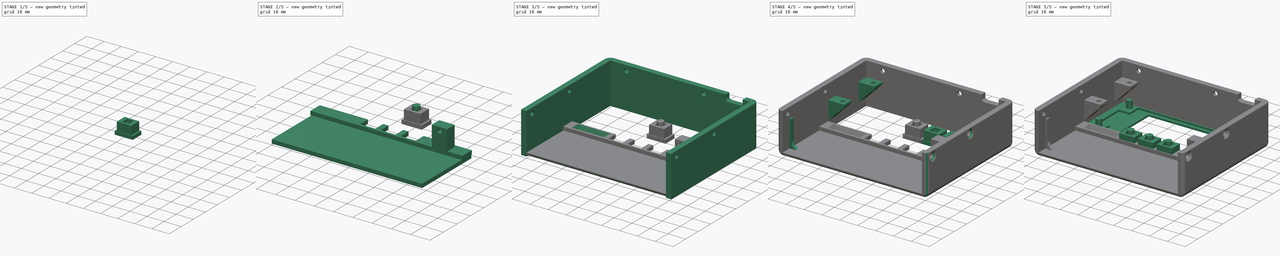
[diagram: build sequence overview — one tinted view per stage of 5, left to right]
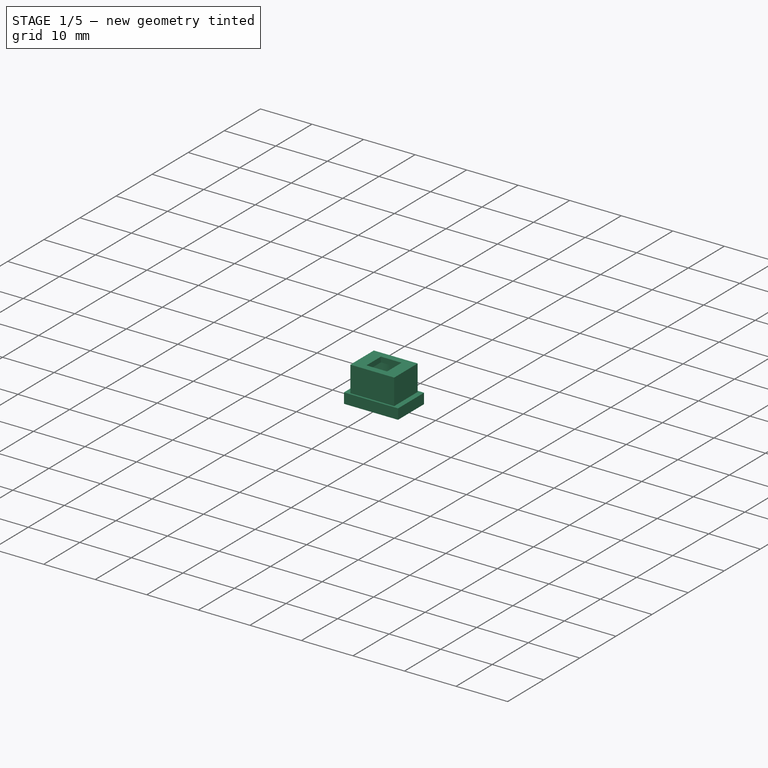
[diagram: stage 1 of 5 — iso view after this stage's code; geometry added in this stage tinted green]
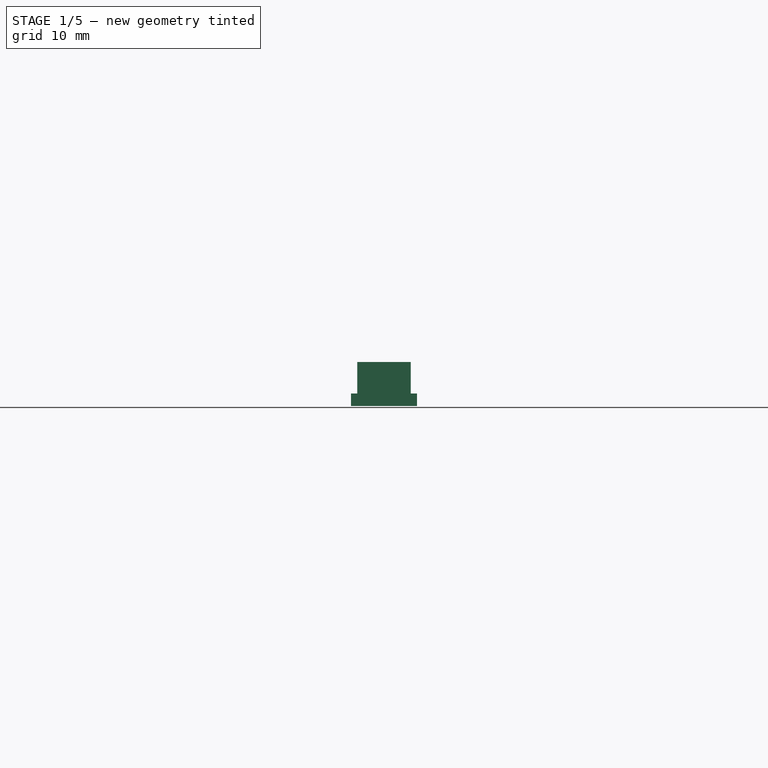
[diagram: stage 1 of 5 — front view after this stage's code; geometry added in this stage tinted green]
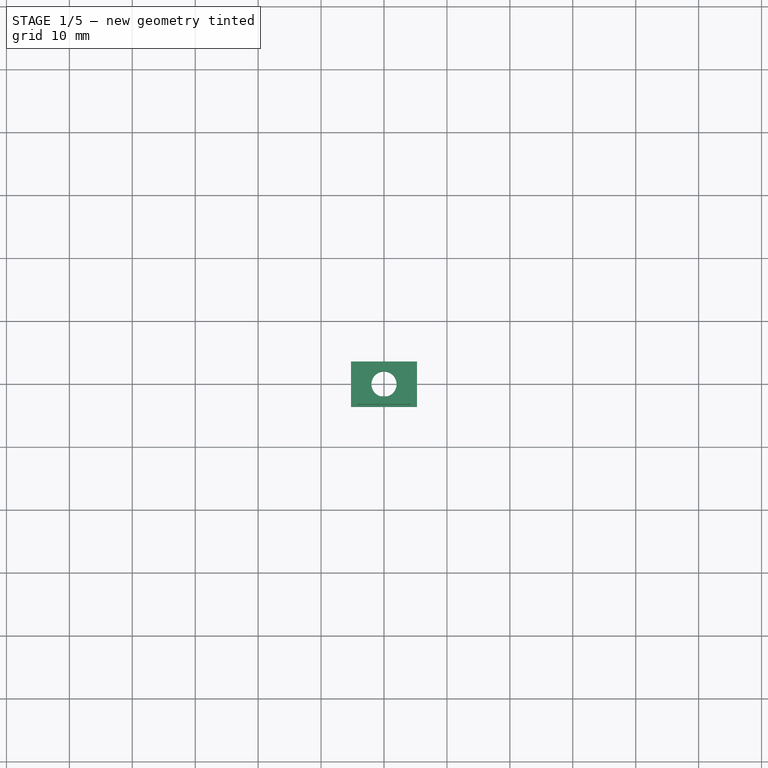
[diagram: stage 1 of 5 — top view after this stage's code; geometry added in this stage tinted green]
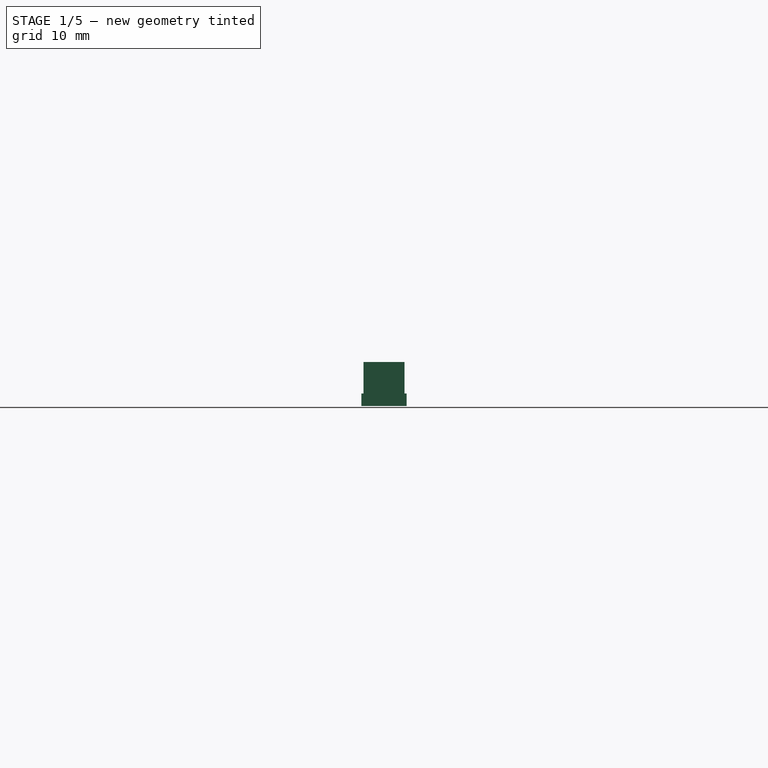
[diagram: stage 1 of 5 — right view after this stage's code; geometry added in this stage tinted green]
FCSTD DOCUMENT  (FreeCAD 0.21R33771 (Git))
Label: Main_body
License: All rights reserved
LicenseURL: http://en.wikipedia.org/wiki/All_rights_reserved
objects: Sketcher::SketchObject×23, PartDesign::Pad×13, PartDesign::Pocket×10, PartDesign::Fillet×6, PartDesign::Body×5, PartDesign::Chamfer×4, Part::FeaturePython×3, Part::Compound×2
note: 99 computed .brp shape members not serialized (recipe doc carries the construction recipe); baked Part::Feature solids carry a one-line shape summary decoded from their .brp

FEATURE [PartDesign::Body] Body  label="Screen"
  Group = -> [Sketch,Pad,Sketch001,Sketch002,Pocket,Sketch003,Pocket001,Pad001]
  Origin = -> Origin
  Tip = -> Pad001
FEATURE [Part::FeaturePython] LinearArray  # WARN: FeaturePython — macro-defined, semantics opaque (R4)
  Alignment = 0
  CellStart = A1
  Count = 3
  Dir = (1,0,0)
  DirIsDriven = true
  DistributionLaw = 0
  DrivenProperty = 1
  EndInclusive = true
  ExposePlacement = false
  GeneratorMode = 0
  MarkerShape = 1
  MarkerSize = 0
  NumElements = 3
  OrientMode = 1
  Point = (0,0,0)
  PointIsDriven = true
  Reverse = false
  SpanEnd = 21
  SpanStart = 0
  Step = 10.5
  Type = lattice2LinearArray.LinearArray
  VSGVersion = 1
  Values = 0.0 | 10.5 | 21.0
  ValuesSource = 2
  isLattice = 1
FEATURE [Sketcher::SketchObject] Sketch007
  FullyConstrained = true
  MapMode = 5
  Support = -> [XY_Plane001]
  sketch-geometry (4):
    g0: LineSegment StartX=-5.25 StartY=3.6 StartZ=0 EndX=5.25 EndY=3.6 EndZ=0
    g1: LineSegment StartX=5.25 StartY=3.6 StartZ=0 EndX=5.25 EndY=-3.6 EndZ=0
    g2: LineSegment StartX=5.25 StartY=-3.6 StartZ=0 EndX=-5.25 EndY=-3.6 EndZ=0
    g3: LineSegment StartX=-5.25 StartY=-3.6 StartZ=0 EndX=-5.25 EndY=3.6 EndZ=0
  constraints (11):
    c: Coincident(g0,g1)
    c: Coincident(g1,g2)
    c: Coincident(g2,g3)
    c: Coincident(g3,g0)
    c: Horizontal(g0)
    c: Horizontal(g2)
    c: Vertical(g1)
    c: Vertical(g3)
    c: Symmetric(g0,g1,g-1)
    c: DistanceY(g1,g1) = 7.2
    c: DistanceX(g0,g0) = 10.5
FEATURE [PartDesign::Pad] Pad005
  AlongSketchNormal = false
  Direction = (0,0,1)
  Length = 2
  Length2 = 10
  Profile = -> Sketch007
  ReferenceAxis = -> Sketch007 [N_Axis]
  Type = 0
FEATURE [Sketcher::SketchObject] Sketch008
  FullyConstrained = true
  MapMode = 5
  Placement = pos=(0,0,2) rot=(0,0,1;0rad)
  Support = -> [Pad005]
  sketch-geometry (5):
    g0: LineSegment StartX=-4.25 StartY=3.25 StartZ=0 EndX=-4.25 EndY=-3.25 EndZ=0
    g1: LineSegment StartX=-4.25 StartY=-3.25 StartZ=0 EndX=4.25 EndY=-3.25 EndZ=0
    g2: LineSegment StartX=4.25 StartY=-3.25 StartZ=0 EndX=4.25 EndY=3.25 EndZ=0
    g3: LineSegment StartX=4.25 StartY=3.25 StartZ=0 EndX=-4.25 EndY=3.25 EndZ=0
    g4: GeomPoint X=0 Y=0 Z=0
  constraints (12):
    c: Coincident(g0,g1)
    c: Coincident(g1,g2)
    c: Coincident(g2,g3)
    c: Coincident(g3,g0)
    c: Horizontal(g1)
    c: Horizontal(g3)
    c: Vertical(g0)
    c: Vertical(g2)
    c: Symmetric(g1,g0,g4)
    c: Coincident(g4,g-1)
    c: DistanceX(g3,g3) = 8.5
    c: DistanceY(g2,g2) = 6.5
FEATURE [PartDesign::Pad] Pad006
  BaseFeature = -> Pad005
  Direction = (0,0,1)
  Length = 4
  Length2 = 10
  Profile = -> Sketch008
  ReferenceAxis = -> Sketch008 [N_Axis]
  Type = 0
FEATURE [Sketcher::SketchObject] Sketch009
  FullyConstrained = true
  MapMode = 5
  Placement = pos=(0,0,6) rot=(0,0,1;0rad)
  Support = -> [Pad006]
  sketch-geometry (5):
    g0: GeomPoint X=0 Y=0 Z=0
    g1: ArcOfCircle CenterX=-0.85 CenterY=0 CenterZ=0 NormalX=0 NormalY=0 NormalZ=1 AngleXU=0 Radius=2.75 StartAngle=1.5708 EndAngle=4.71239
    g2: ArcOfCircle CenterX=0.85 CenterY=0 CenterZ=0 NormalX=0 NormalY=0 NormalZ=1 AngleXU=0 Radius=2.75 StartAngle=4.71239 EndAngle=7.85398
    g3: LineSegment StartX=-0.85 StartY=-2.75 StartZ=0 EndX=0.85 EndY=-2.75 EndZ=0
    g4: LineSegment StartX=0.85 StartY=2.75 StartZ=0 EndX=-0.85 EndY=2.75 EndZ=0
  constraints (10):
    c: Coincident(g0,g-1)
    c: Tangent(g1,g3) = -1.5708
    c: Tangent(g3,g2) = -1.5708
    c: Tangent(g2,g4) = -1.5708
    c: Tangent(g4,g1) = -1.5708
    c: Equal(g1,g2)
    c: PointOnObject(g1,g-1)
    c: DistanceY(g2,g2) = 5.5
    c: Symmetric(g2,g1,g0)
    c: DistanceX(g1,g2) = 1.7
FEATURE [PartDesign::Pocket] Pocket002
  BaseFeature = -> Pad006
  Direction = (0,0,-1)
  Length = 0
  Length2 = 5
  Profile = -> Sketch009
  ReferenceAxis = -> Sketch009 [N_Axis]
  Type = 3
  UpToFace = -> Pad006 [Face5]
FEATURE [Sketcher::SketchObject] Sketch010
  ExternalGeometry = -> [Pocket002]
  FullyConstrained = true
  MapMode = 5
  Placement = pos=(0,0,6) rot=(0,0,1;0rad)
  Support = -> [Pocket002]
  sketch-geometry (5):
    g0: LineSegment StartX=4.25 StartY=-3.25 StartZ=0 EndX=4.25 EndY=3.25 EndZ=0
    g1: LineSegment StartX=4.25 StartY=3.25 StartZ=0 EndX=-4.25 EndY=3.25 EndZ=0
    g2: LineSegment StartX=-4.25 StartY=3.25 StartZ=0 EndX=-4.25 EndY=-3.25 EndZ=0
    g3: LineSegment StartX=-4.25 StartY=-3.25 StartZ=0 EndX=4.25 EndY=-3.25 EndZ=0
    g4: GeomPoint X=0 Y=0 Z=0
  constraints (11):
    c: Coincident(g0,g1)
    c: Coincident(g2,g3)
    c: Horizontal(g1)
    c: Horizontal(g3)
    c: Vertical(g0)
    c: Vertical(g2)
    c: Symmetric(g1,g0,g4)
    c: Coincident(g4,g-1)
    c: Coincident(g1,g2)
    c: Coincident(g3,g0)
    c: Coincident(g0,g-3)
FEATURE [PartDesign::Pad] Pad007
  BaseFeature = -> Pocket002
  Direction = (0,0,1)
  Length = 1
  Length2 = 10
  Profile = -> Sketch010
  ReferenceAxis = -> Sketch010 [N_Axis]
  Type = 0
FEATURE [Sketcher::SketchObject] Sketch011
  FullyConstrained = true
  MapMode = 5
  Placement = pos=(0,0,7) rot=(0,0,1;0rad)
  Support = -> [Pad007]
  sketch-geometry (5):
    g0: LineSegment StartX=2 StartY=2 StartZ=0 EndX=2 EndY=-2 EndZ=0
    g1: LineSegment StartX=2 StartY=-2 StartZ=0 EndX=-2 EndY=-2 EndZ=0
    g2: LineSegment StartX=-2 StartY=-2 StartZ=0 EndX=-2 EndY=2 EndZ=0
    g3: LineSegment StartX=-2 StartY=2 StartZ=0 EndX=2 EndY=2 EndZ=0
    g4: GeomPoint X=0 Y=0 Z=0
  constraints (12):
    c: Coincident(g0,g1)
    c: Coincident(g1,g2)
    c: Coincident(g2,g3)
    c: Coincident(g3,g0)
    c: Horizontal(g1)
    c: Horizontal(g3)
    c: Vertical(g0)
    c: Vertical(g2)
    c: Symmetric(g1,g0,g4)
    c: DistanceY(g2,g2) = 4
    c: Coincident(g4,g-1)
    c: Equal(g0,g3)
FEATURE [PartDesign::Pocket] Pocket003
  BaseFeature = -> Pad007
  Direction = (0,0,-1)
  Length = 1
  Length2 = 5
  Profile = -> Sketch011
  ReferenceAxis = -> Sketch011 [N_Axis]
  Type = 0
FEATURE [Sketcher::SketchObject] Sketch026
  FullyConstrained = true
  MapMode = 5
  Placement = pos=(0,0,0) rot=(1,0,0;3.14159rad)
  Support = -> [Pocket003]
  sketch-geometry (1):
    g0: Circle CenterX=0 CenterY=0 CenterZ=0 NormalX=0 NormalY=0 NormalZ=1 AngleXU=0 Radius=2
  constraints (2):
    c: Coincident(g0,g-1)
    c: Diameter(g0) = 4
FEATURE [PartDesign::Pocket] Pocket009
  BaseFeature = -> Pocket003
  Direction = (0,0,1)
  Length = 5
  Length2 = 5
  Profile = -> Sketch026
  ReferenceAxis = -> Sketch026 [N_Axis]
  Type = 0
FEATURE [PartDesign::Fillet] Fillet007
  Base = -> Pocket009 [Edge12]
  BaseFeature = -> Pocket009
  Radius = 0.7
  SupportTransform = false
  UseAllEdges = false
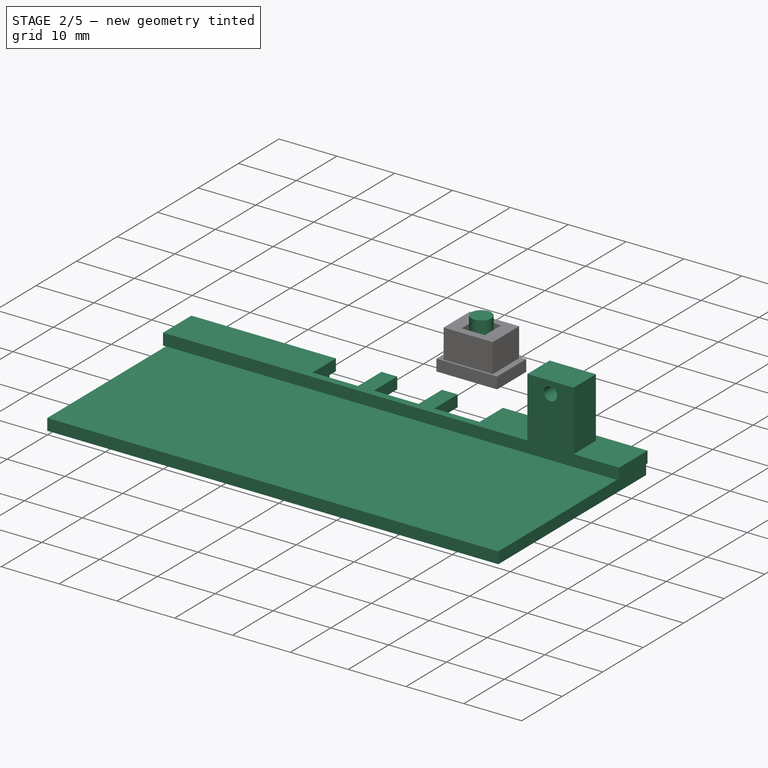
[diagram: stage 2 of 5 — iso view after this stage's code; geometry added in this stage tinted green]
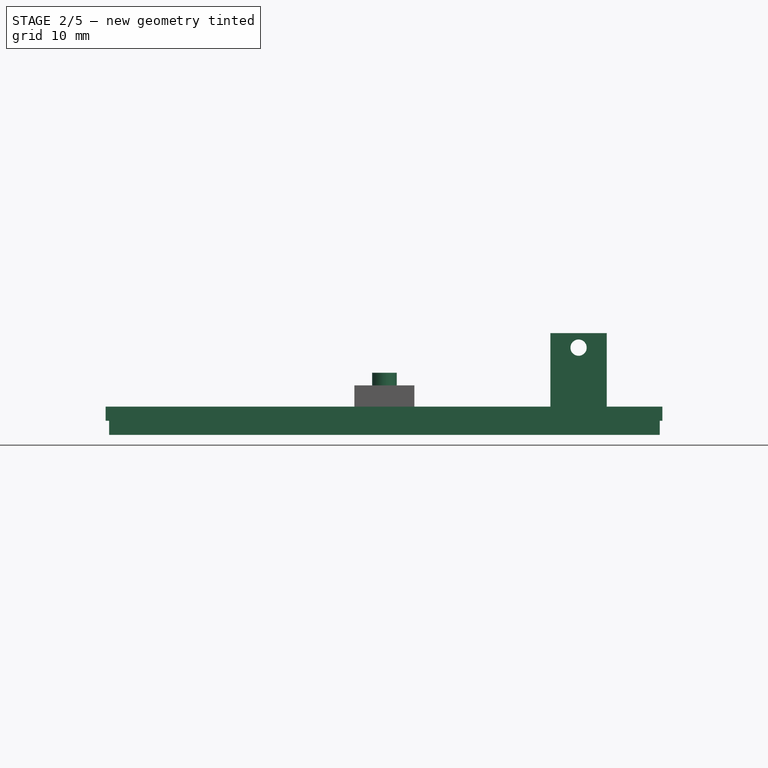
[diagram: stage 2 of 5 — front view after this stage's code; geometry added in this stage tinted green]
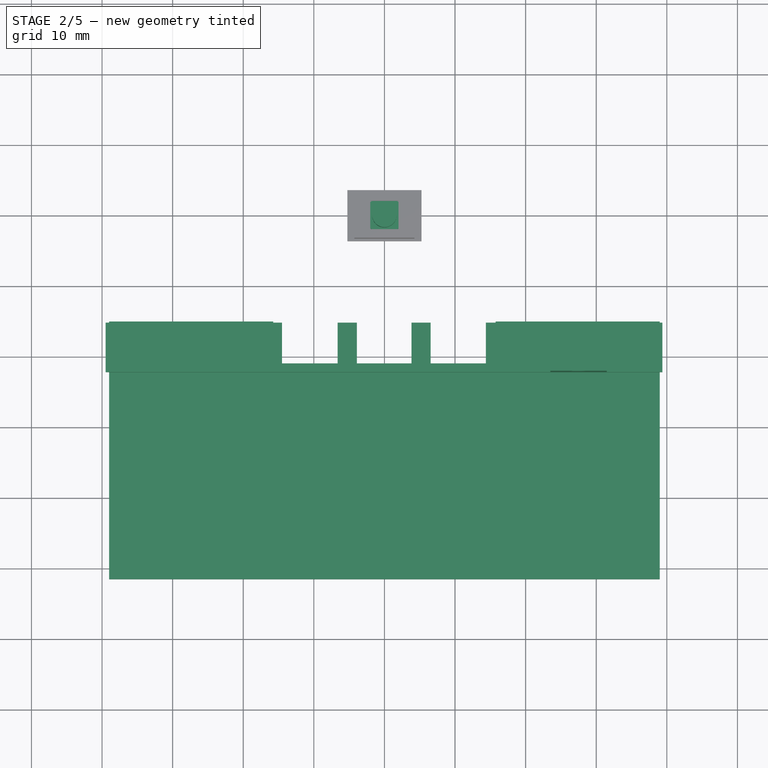
[diagram: stage 2 of 5 — top view after this stage's code; geometry added in this stage tinted green]
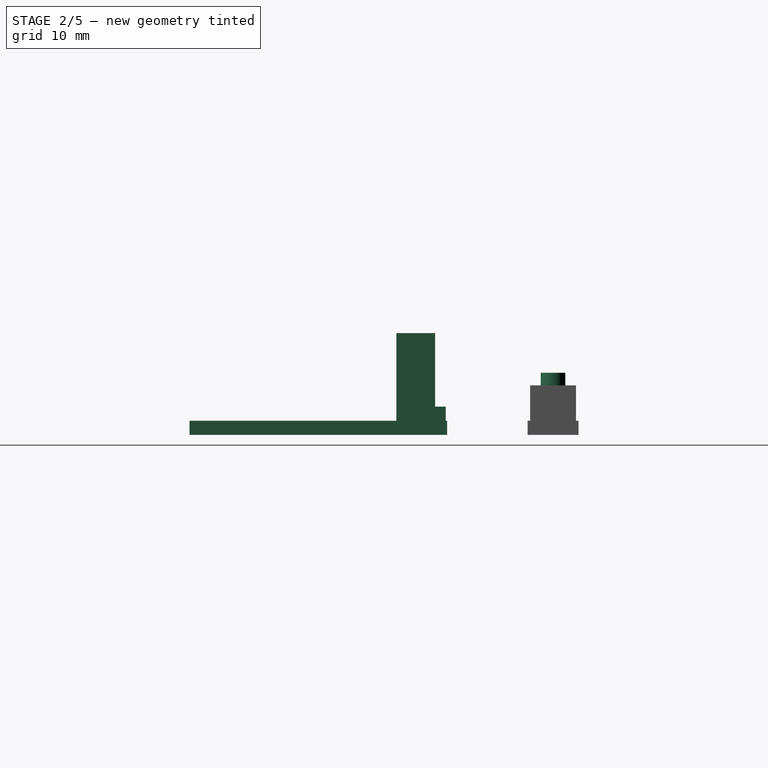
[diagram: stage 2 of 5 — right view after this stage's code; geometry added in this stage tinted green]
FEATURE [Sketcher::SketchObject] Sketch012
  AttachmentOffset = pos=(0,0,3.5) rot=(0,0,1;0rad)
  FullyConstrained = true
  MapMode = 5
  Placement = pos=(0,0,3.5) rot=(0,0,1;0rad)
  Support = -> [XY_Plane002]
  sketch-geometry (5):
    g0: GeomPoint X=0 Y=0 Z=0
    g1: ArcOfCircle CenterX=-0.75 CenterY=0 CenterZ=0 NormalX=0 NormalY=0 NormalZ=1 AngleXU=0 Radius=2.25 StartAngle=1.5708 EndAngle=4.71239
    g2: ArcOfCircle CenterX=0.75 CenterY=0 CenterZ=0 NormalX=0 NormalY=0 NormalZ=1 AngleXU=0 Radius=2.25 StartAngle=4.71239 EndAngle=7.85398
    g3: LineSegment StartX=-0.75 StartY=-2.25 StartZ=0 EndX=0.75 EndY=-2.25 EndZ=0
    g4: LineSegment StartX=0.75 StartY=2.25 StartZ=0 EndX=-0.75 EndY=2.25 EndZ=0
  constraints (10):
    c: Coincident(g0,g-1)
    c: Tangent(g1,g3) = -1.5708
    c: Tangent(g3,g2) = -1.5708
    c: Tangent(g2,g4) = -1.5708
    c: Tangent(g4,g1) = -1.5708
    c: Equal(g1,g2)
    c: PointOnObject(g1,g-1)
    c: DistanceX(g1,g2) = 1.5
    c: DistanceY(g2,g2) = 4.5
    c: Symmetric(g1,g2,g0)
FEATURE [PartDesign::Pad] Pad008
  Direction = (0,0,1)
  Length = 2
  Length2 = 10
  Profile = -> Sketch012
  ReferenceAxis = -> Sketch012 [N_Axis]
  Type = 0
FEATURE [Sketcher::SketchObject] Sketch013
  FullyConstrained = true
  MapMode = 5
  Support = -> [XY_Plane002]
  sketch-geometry (1):
    g0: Circle CenterX=0 CenterY=0 CenterZ=0 NormalX=0 NormalY=0 NormalZ=1 AngleXU=0 Radius=1.75
  constraints (2):
    c: Coincident(g0,g-1)
    c: Diameter(g0) = 3.5
FEATURE [PartDesign::Pad] Pad009
  BaseFeature = -> Pad008
  Direction = (0,0,1)
  Length = 8.8
  Length2 = 10
  Profile = -> Sketch013
  ReferenceAxis = -> Sketch013 [N_Axis]
  Type = 0
FEATURE [Sketcher::SketchObject] Sketch014
  FullyConstrained = true
  MapMode = 5
  Support = -> [XY_Plane003]
  sketch-geometry (8):
    g0: LineSegment StartX=-39 StartY=-15 StartZ=0 EndX=-15.75 EndY=-15 EndZ=0
    g1: LineSegment StartX=-15.75 StartY=-15 StartZ=0 EndX=-15.75 EndY=-22 EndZ=0
    g2: LineSegment StartX=-15.75 StartY=-22 StartZ=0 EndX=15.75 EndY=-22 EndZ=0
    g3: LineSegment StartX=15.75 StartY=-22 StartZ=0 EndX=15.75 EndY=-15 EndZ=0
    g4: LineSegment StartX=15.75 StartY=-15 StartZ=0 EndX=39 EndY=-15 EndZ=0
    g5: LineSegment StartX=39 StartY=-15 StartZ=0 EndX=39 EndY=-51.5 EndZ=0
    g6: LineSegment StartX=39 StartY=-51.5 StartZ=0 EndX=-39 EndY=-51.5 EndZ=0
    g7: LineSegment StartX=-39 StartY=-51.5 StartZ=0 EndX=-39 EndY=-15 EndZ=0
  constraints (23):
    c: Horizontal(g0)
    c: Coincident(g1,g0)
    c: Vertical(g1)
    c: Coincident(g2,g1)
    c: Horizontal(g2)
    c: Coincident(g3,g2)
    c: Vertical(g3)
    c: Coincident(g4,g3)
    c: Horizontal(g4)
    c: Coincident(g5,g4)
    c: Vertical(g5)
    c: Coincident(g6,g5)
    c: Coincident(g7,g6)
    c: Coincident(g7,g0)
    c: Vertical(g7)
    c: DistanceX(g0,g0) = 23.25
    c: DistanceY(g1,g1) = 7
    c: Horizontal(g3,g0)
    c: DistanceX(g6,g6) = 78
    c: DistanceY(g5,g5) = 36.5
    c: DistanceX(g2,g2) = 31.5
    c: Symmetric(g6,g5,g-2)
    c: DistanceY(g4,g-1) = 15
FEATURE [PartDesign::Pad] Pad010
  Direction = (0,0,1)
  Length = 2
  Length2 = 10
  Profile = -> Sketch014
  ReferenceAxis = -> Sketch014 [N_Axis]
  Type = 0
FEATURE [Sketcher::SketchObject] Sketch020
  FullyConstrained = false
  MapMode = 5
  Placement = pos=(0,0,2) rot=(0,0,1;0rad)
  Support = -> [Pad010]
  sketch-geometry (16):
    g0: LineSegment StartX=-14.5 StartY=-15.2 StartZ=0 EndX=-39.5 EndY=-15.2 EndZ=0
    g1: LineSegment StartX=-39.5 StartY=-15.2 StartZ=0 EndX=-39.5 EndY=-22.2 EndZ=0
    g2: LineSegment StartX=-14.5 StartY=-20.9727 StartZ=0 EndX=-14.5 EndY=-15.2 EndZ=0
    g3: LineSegment StartX=39.3786 StartY=-15.2 StartZ=0 EndX=14.3786 EndY=-15.2 EndZ=0
    g4: LineSegment StartX=14.3786 StartY=-15.2 StartZ=0 EndX=14.3786 EndY=-20.9727 EndZ=0
    g5: LineSegment StartX=-39.5 StartY=-22.2 StartZ=0 EndX=39.3786 EndY=-22.2 EndZ=0
    g6: LineSegment StartX=39.3786 StartY=-22.2 StartZ=0 EndX=39.3786 EndY=-15.2 EndZ=0
    g7: LineSegment StartX=-14.5 StartY=-20.9727 StartZ=0 EndX=-6.62573 EndY=-20.9727 EndZ=0
    g8: LineSegment StartX=-6.62573 StartY=-20.9727 StartZ=0 EndX=-6.62573 EndY=-15.2 EndZ=0
    g9: LineSegment StartX=-6.62573 StartY=-15.2 StartZ=0 EndX=-3.90018 EndY=-15.2 EndZ=0
    g10: LineSegment StartX=-3.90018 StartY=-15.2 StartZ=0 EndX=-3.90018 EndY=-20.9727 EndZ=0
    g11: LineSegment StartX=-3.90018 StartY=-20.9727 StartZ=0 EndX=3.83944 EndY=-20.9727 EndZ=0
    g12: LineSegment StartX=3.83944 StartY=-20.9727 StartZ=0 EndX=3.83944 EndY=-15.2 EndZ=0
    g13: LineSegment StartX=3.83944 StartY=-15.2 StartZ=0 EndX=6.54744 EndY=-15.2 EndZ=0
    g14: LineSegment StartX=6.54744 StartY=-15.2 StartZ=0 EndX=6.54744 EndY=-20.9727 EndZ=0
    g15: LineSegment StartX=6.54744 StartY=-20.9727 StartZ=0 EndX=14.3786 EndY=-20.9727 EndZ=0
  constraints (42):
    c: Coincident(g0,g1)
    c: Coincident(g2,g0)
    c: Horizontal(g0)
    c: Vertical(g1)
    c: Vertical(g2)
    c: DistanceX(g0,g0) = 25
    c: Coincident(g3,g4)
    c: Coincident(g5,g6)
    c: Coincident(g6,g3)
    c: Horizontal(g3)
    c: Horizontal(g5)
    c: Vertical(g4)
    c: Vertical(g6)
    c: Equal(g0,g3) = 25
    c: DistanceY(g0,g-1) = 15.2
    c: DistanceX(g0,g-1) = 39.5
    c: Horizontal(g7)
    c: Coincident(g8,g7)
    c: Vertical(g8)
    c: Coincident(g9,g8)
    c: Horizontal(g9)
    c: Coincident(g10,g9)
    c: Vertical(g10)
    c: Coincident(g11,g10)
    c: Horizontal(g11)
    c: Coincident(g12,g11)
    c: Vertical(g12)
    c: Coincident(g13,g12)
    c: Horizontal(g13)
    c: Coincident(g14,g13)
    c: Vertical(g14)
    c: Coincident(g15,g14)
    c: Horizontal(g15)
    c: Coincident(g2,g7)
    c: Coincident(g4,g15)
    c: Horizontal(g7,g10)
    c: Horizontal(g10,g14)
    c: Coincident(g5,g1)
    c: DistanceY(g6,g6) = 7
    c: Horizontal(g3,g13)
    c: Horizontal(g12,g9)
    c: Horizontal(g8,g0)
FEATURE [PartDesign::Pad] Pad013
  BaseFeature = -> Pad010
  Direction = (0,0,1)
  Length = 2
  Length2 = 10
  Profile = -> Sketch020
  ReferenceAxis = -> Sketch020 [N_Axis]
  Type = 0
FEATURE [Sketcher::SketchObject] Sketch021
  FullyConstrained = true
  MapMode = 5
  Placement = pos=(0,-22.2,0) rot=(1,0,0;1.5708rad)
  Support = -> [Pad013]
  sketch-geometry (5):
    g0: LineSegment StartX=23.5 StartY=14.4 StartZ=0 EndX=31.5 EndY=14.4 EndZ=0
    g1: LineSegment StartX=31.5 StartY=14.4 StartZ=0 EndX=31.5 EndY=3.4 EndZ=0
    g2: LineSegment StartX=31.5 StartY=3.4 StartZ=0 EndX=23.5 EndY=3.4 EndZ=0
    g3: LineSegment StartX=23.5 StartY=3.4 StartZ=0 EndX=23.5 EndY=14.4 EndZ=0
    g4: Circle CenterX=27.5 CenterY=12.35 CenterZ=0 NormalX=0 NormalY=0 NormalZ=1 AngleXU=0 Radius=1.15
  constraints (15):
    c: Coincident(g0,g1)
    c: Coincident(g1,g2)
    c: Coincident(g2,g3)
    c: Coincident(g3,g0)
    c: Horizontal(g0)
    c: Horizontal(g2)
    c: Vertical(g1)
    c: Vertical(g3)
    c: DistanceX(g0,g0) = 8
    c: DistanceY(g1,g1) = 11
    c: DistanceX(g4,g0) = 4
    c: Diameter(g4) = 2.3
    c: DistanceY(g-1,g0) = 14.4
    c: DistanceX(g-1,g0) = 23.5
    c: DistanceY(g4,g0) = 2.05
FEATURE [PartDesign::Pad] Pad014
  BaseFeature = -> Pad013
  Direction = (0,-1,2e-16)
  Length = 5.5
  Length2 = 10
  Profile = -> Sketch021
  ReferenceAxis = -> Sketch021 [N_Axis]
  Reversed = true
  Type = 0
FEATURE [PartDesign::Body] Body003  label="Bottom"
  Group = -> [Sketch014,Pad010,Sketch020,Pad013,Sketch021,Pad014,Fillet003,Fillet006,Sketch025,Pocket008]
  Origin = -> Origin003
  Tip = -> Pocket008
FEATURE [PartDesign::Fillet] Fillet
  Base = -> Pad009 [Edge6]
  BaseFeature = -> Pad009
  Radius = 0.4
  SupportTransform = false
  UseAllEdges = false
FEATURE [PartDesign::Chamfer] Chamfer002
  Angle = 45
  Base = -> Fillet [Edge21]
  BaseFeature = -> Fillet
  ChamferType = 0
  FlipDirection = false
  Size = 1.24
  Size2 = 1
  SupportTransform = false
  UseAllEdges = false
FEATURE [PartDesign::Chamfer] Chamfer003
  Angle = 45
  Base = -> Fillet007 [Edge17]
  BaseFeature = -> Fillet007
  ChamferType = 0
  FlipDirection = false
  Size = 0.7
  Size2 = 1
  SupportTransform = false
  UseAllEdges = false
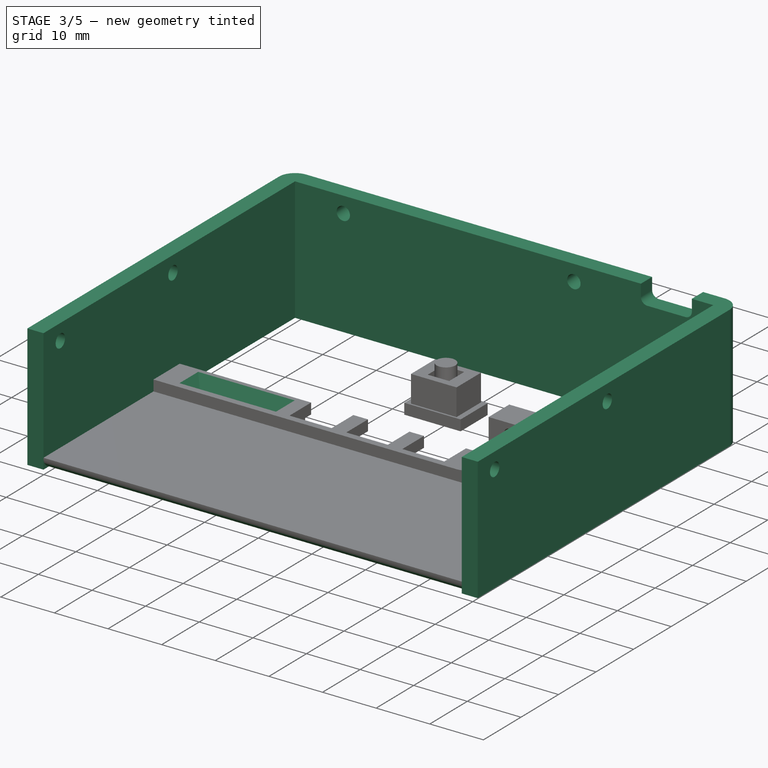
[diagram: stage 3 of 5 — iso view after this stage's code; geometry added in this stage tinted green]
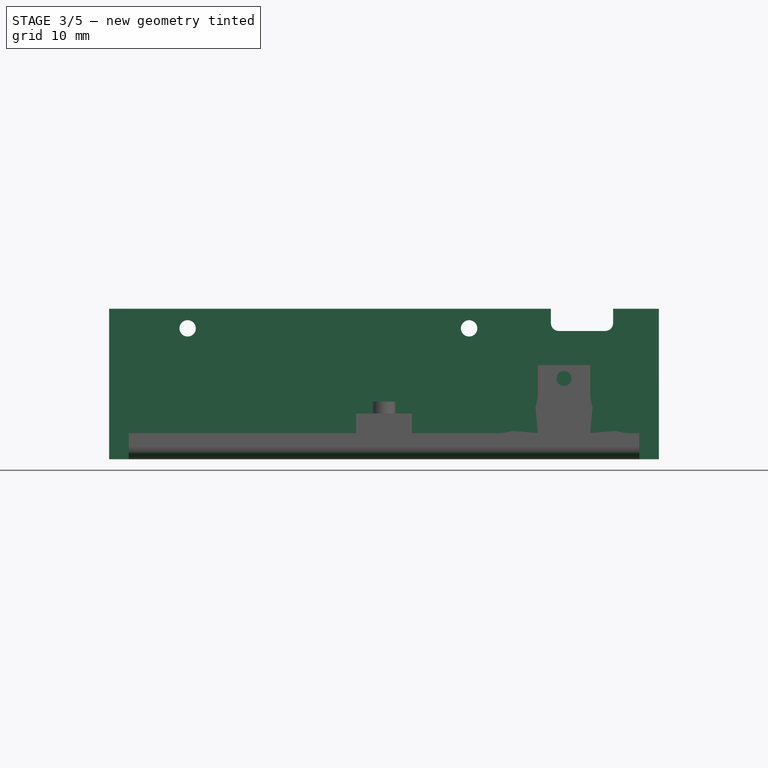
[diagram: stage 3 of 5 — front view after this stage's code; geometry added in this stage tinted green]
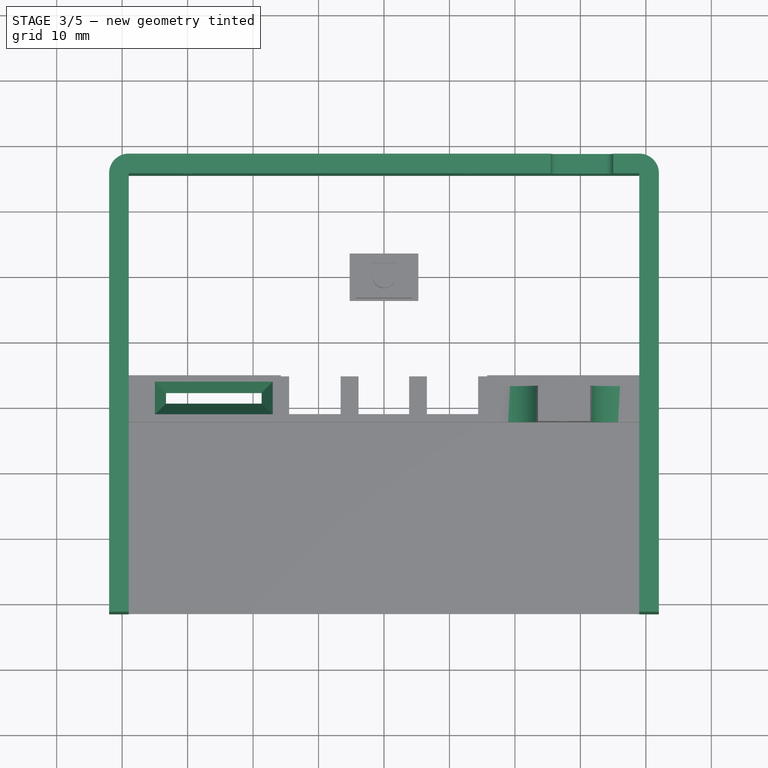
[diagram: stage 3 of 5 — top view after this stage's code; geometry added in this stage tinted green]
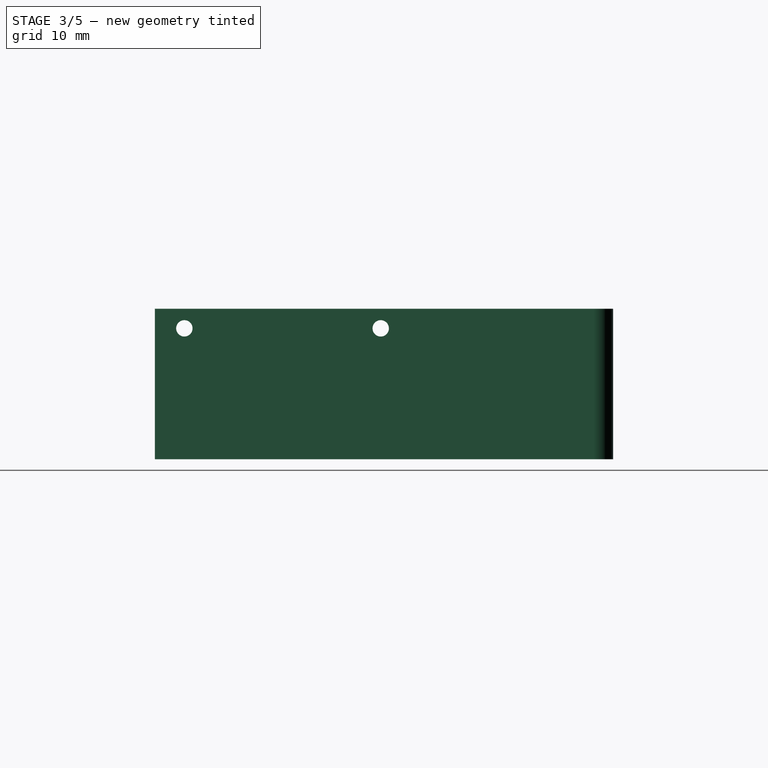
[diagram: stage 3 of 5 — right view after this stage's code; geometry added in this stage tinted green]
FEATURE [Sketcher::SketchObject] Sketch015
  FullyConstrained = true
  MapMode = 5
  Support = -> [XY_Plane004]
  sketch-geometry (11):
    g0: ArcOfCircle CenterX=-39 CenterY=15.5 CenterZ=0 NormalX=0 NormalY=0 NormalZ=1 AngleXU=0 Radius=3 StartAngle=1.5708 EndAngle=3.14159
    g1: LineSegment StartX=-39 StartY=18.5 StartZ=0 EndX=39 EndY=18.5 EndZ=0
    g2: ArcOfCircle CenterX=39 CenterY=15.5 CenterZ=0 NormalX=0 NormalY=0 NormalZ=1 AngleXU=0 Radius=3 StartAngle=1e-16 EndAngle=1.5708
    g3: LineSegment StartX=42 StartY=15.5 StartZ=0 EndX=42 EndY=-51.5 EndZ=0
    g4: LineSegment StartX=-42 StartY=-51.5 StartZ=0 EndX=-42 EndY=15.5 EndZ=0
    g5: GeomPoint X=-42 Y=18.5 Z=0
    g6: LineSegment StartX=42 StartY=-51.5 StartZ=0 EndX=39 EndY=-51.5 EndZ=0
    g7: LineSegment StartX=39 StartY=-51.5 StartZ=0 EndX=39 EndY=15.5 EndZ=0
    g8: LineSegment StartX=-39 StartY=15.5 StartZ=0 EndX=39 EndY=15.5 EndZ=0
    g9: LineSegment StartX=-39 StartY=15.5 StartZ=0 EndX=-39 EndY=-51.5 EndZ=0
    g10: LineSegment StartX=-39 StartY=-51.5 StartZ=0 EndX=-42 EndY=-51.5 EndZ=0
  constraints (27):
    c: Tangent(g0,g1) = 1.5708
    c: Tangent(g1,g2) = 1.5708
    c: Tangent(g2,g3) = 1.5708
    c: Tangent(g4,g0) = 1.5708
    c: Horizontal(g1)
    c: Vertical(g3)
    c: Vertical(g4)
    c: PointOnObject(g5,g1)
    c: PointOnObject(g5,g4)
    c: Radius(g0) = 3
    c: Coincident(g6,g3)
    c: Horizontal(g6)
    c: Coincident(g7,g6)
    c: Coincident(g7,g2)
    c: Vertical(g7)
    c: Coincident(g8,g0)
    c: Coincident(g8,g2)
    c: Coincident(g9,g0)
    c: Vertical(g9)
    c: Coincident(g10,g9)
    c: Coincident(g10,g4)
    c: Horizontal(g10)
    c: Horizontal(g9,g6)
    c: DistanceX(g8,g8) = 78
    c: Symmetric(g0,g2,g-2)
    c: DistanceY(g-1,g2) = 15.5
    c: DistanceY(g7,g7) = 67
FEATURE [PartDesign::Pad] Pad011
  Direction = (0,0,1)
  Length = 23
  Length2 = 10
  Profile = -> Sketch015
  ReferenceAxis = -> Sketch015 [N_Axis]
  Type = 0
FEATURE [Sketcher::SketchObject] Sketch017
  ExternalGeometry = -> [Pad011]
  FullyConstrained = true
  MapMode = 5
  Placement = pos=(0,18.5,0) rot=(0,0.707107,0.707107;3.14159rad)
  Support = -> [Pad011]
  sketch-geometry (7):
    g0: LineSegment StartX=-25.5 StartY=23 StartZ=0 EndX=-25.5 EndY=20.8 EndZ=0
    g1: ArcOfCircle CenterX=-26.7 CenterY=20.8 CenterZ=0 NormalX=0 NormalY=0 NormalZ=1 AngleXU=0 Radius=1.2 StartAngle=4.71239 EndAngle=6.28319
    g2: LineSegment StartX=-26.7 StartY=19.6 StartZ=0 EndX=-33.8 EndY=19.6 EndZ=0
    g3: ArcOfCircle CenterX=-33.8 CenterY=20.8 CenterZ=0 NormalX=0 NormalY=0 NormalZ=1 AngleXU=0 Radius=1.2 StartAngle=3.14159 EndAngle=4.71239
    g4: LineSegment StartX=-35 StartY=20.8 StartZ=0 EndX=-35 EndY=23 EndZ=0
    g5: GeomPoint X=-25.5 Y=19.6 Z=0
    g6: LineSegment StartX=-35 StartY=23 StartZ=0 EndX=-25.5 EndY=23 EndZ=0
  constraints (18):
    c: Tangent(g0,g1) = 1.5708
    c: Tangent(g1,g2) = 1.5708
    c: Tangent(g2,g3) = 1.5708
    c: Tangent(g3,g4) = 1.5708
    c: Horizontal(g2)
    c: Vertical(g0)
    c: Vertical(g4)
    c: Equal(g1,g3)
    c: PointOnObject(g5,g0)
    c: PointOnObject(g5,g2)
    c: DistanceY(g2,g-3) = 3.4
    c: Radius(g3) = 1.2
    c: Coincident(g6,g4)
    c: Coincident(g6,g0)
    c: Horizontal(g6)
    c: Horizontal(g-3,g4)
    c: DistanceX(g6,g6) = 9.5
    c: DistanceX(g-3,g4) = 7
FEATURE [PartDesign::Pocket] Pocket004
  BaseFeature = -> Pad011
  Direction = (0,-1,2e-16)
  Length = 5
  Length2 = 5
  Profile = -> Sketch017
  ReferenceAxis = -> Sketch017 [N_Axis]
  Type = 0
FEATURE [Sketcher::SketchObject] Sketch018
  ExternalGeometry = -> [Pocket004]
  FullyConstrained = true
  MapMode = 5
  Placement = pos=(-42,0,0) rot=(0.57735,-0.57735,-0.57735;2.0944rad)
  Support = -> [Pocket004]
  sketch-geometry (3):
    g0: GeomPoint X=17 Y=20 Z=0
    g1: Circle CenterX=17 CenterY=20 CenterZ=0 NormalX=0 NormalY=0 NormalZ=1 AngleXU=0 Radius=1.25
    g2: Circle CenterX=47 CenterY=20 CenterZ=0 NormalX=0 NormalY=0 NormalZ=1 AngleXU=0 Radius=1.25
  constraints (7):
    c: DistanceX(g-3,g0) = 35.5
    c: DistanceY(g0,g-3) = 3
    c: Coincident(g1,g0)
    c: Diameter(g1) = 2.5
    c: Equal(g1,g2)
    c: Horizontal(g2,g1)
    c: DistanceX(g1,g2) = 30
FEATURE [PartDesign::Pocket] Pocket005
  BaseFeature = -> Pocket004
  Direction = (1,0,0)
  Length = 5
  Length2 = 5
  Profile = -> Sketch018
  ReferenceAxis = -> Sketch018 [N_Axis]
  Type = 1
FEATURE [Sketcher::SketchObject] Sketch019
  ExternalGeometry = -> [Pocket005]
  FullyConstrained = true
  MapMode = 5
  Placement = pos=(0,18.5,0) rot=(0,0.707107,0.707107;3.14159rad)
  Support = -> [Pocket005]
  sketch-geometry (4):
    g0: GeomPoint X=-13 Y=20 Z=0
    g1: GeomPoint X=30 Y=20 Z=0
    g2: Circle CenterX=-13 CenterY=20 CenterZ=0 NormalX=0 NormalY=0 NormalZ=1 AngleXU=0 Radius=1.25
    g3: Circle CenterX=30 CenterY=20 CenterZ=0 NormalX=0 NormalY=0 NormalZ=1 AngleXU=0 Radius=1.25
  constraints (8):
    c: DistanceX(g0,g-3) = 55
    c: DistanceX(g1,g-3) = 12
    c: DistanceY(g1,g-3) = 3
    c: Horizontal(g0,g1)
    c: Coincident(g2,g0)
    c: Diameter(g2) = 2.5
    c: Coincident(g3,g1)
    c: Equal(g2,g3)
FEATURE [PartDesign::Pocket] Pocket006
  BaseFeature = -> Pocket005
  Direction = (0,-1,2e-16)
  Length = 5
  Length2 = 5
  Profile = -> Sketch019
  ReferenceAxis = -> Sketch019 [N_Axis]
  Type = 0
FEATURE [PartDesign::Fillet] Fillet003
  Base = -> Pad014 [Edge91,Edge89]
  BaseFeature = -> Pad014
  Radius = 6
  SupportTransform = false
  UseAllEdges = false
FEATURE [PartDesign::Fillet] Fillet006
  Base = -> Fillet003 [Edge94]
  BaseFeature = -> Fillet003
  Radius = 1.99
  SupportTransform = false
  UseAllEdges = false
FEATURE [PartDesign::Body] Body004  label="Wall"
  Group = -> [Sketch015,Pad011,Sketch017,Pocket004,Sketch018,Pocket005,Sketch019,Pocket006,Chamfer,Sketch022,Pad015,Fillet004,Fillet005,Sketch023,Pad016,Chamfer001,Sketch024,Pocket007]
  Origin = -> Origin004
  Tip = -> Pocket007
FEATURE [Sketcher::SketchObject] Sketch025
  FullyConstrained = false
  MapMode = 5
  Placement = pos=(0,0,4) rot=(0,0,1;0rad)
  Support = -> [Fillet006]
  sketch-geometry (6):
    g0: LineSegment StartX=-35 StartY=-16 StartZ=0 EndX=-17 EndY=-16 EndZ=0
    g1: LineSegment StartX=-17 StartY=-16 StartZ=0 EndX=-17 EndY=-21 EndZ=0
    g2: LineSegment StartX=-17 StartY=-21 StartZ=0 EndX=-35 EndY=-21 EndZ=0
    g3: LineSegment StartX=-35 StartY=-21 StartZ=0 EndX=-35 EndY=-16 EndZ=0
    g4: GeomPoint X=-10.5028 Y=-18.6319 Z=0
    g5: GeomPoint X=-22 Y=-18.5224 Z=0
  constraints (13):
    c: Coincident(g0,g1)
    c: Coincident(g1,g2)
    c: Coincident(g2,g3)
    c: Coincident(g3,g0)
    c: Horizontal(g0)
    c: Horizontal(g2)
    c: Vertical(g1)
    c: Vertical(g3)
    c: DistanceX(g2,g2) = 18
    c: DistanceY(g3,g3) = 5
    c: DistanceY(g0,g-1) = 16
    c: DistanceX(g1,g-1) = 17
    c: DistanceX(g5,g1) = 5
FEATURE [PartDesign::Pocket] Pocket008
  BaseFeature = -> Fillet006
  Direction = (0,0,-1)
  Length = 4
  Length2 = 5
  Profile = -> Sketch025
  ReferenceAxis = -> Sketch025 [N_Axis]
  TaperAngle = -23
  Type = 0
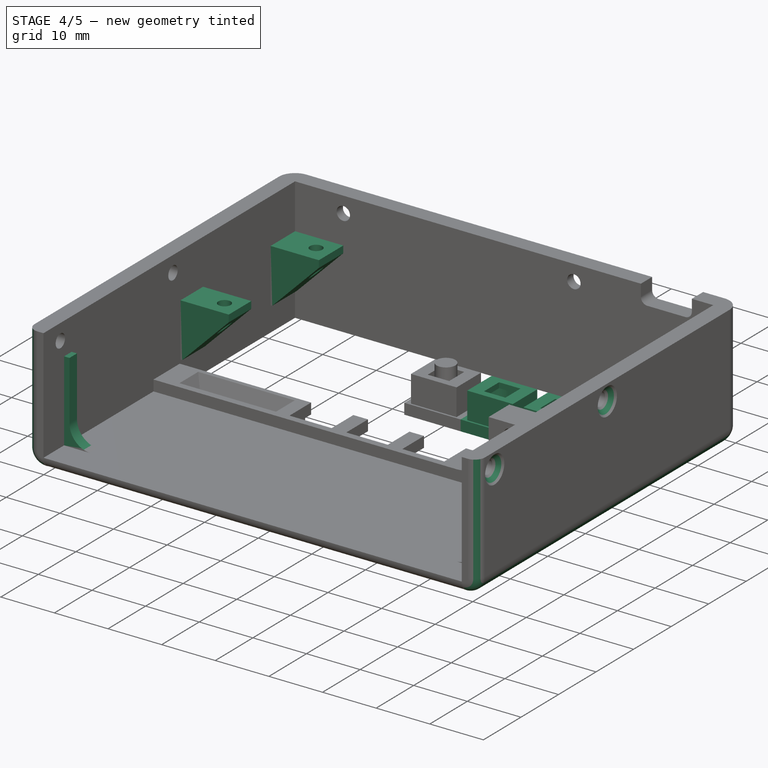
[diagram: stage 4 of 5 — iso view after this stage's code; geometry added in this stage tinted green]
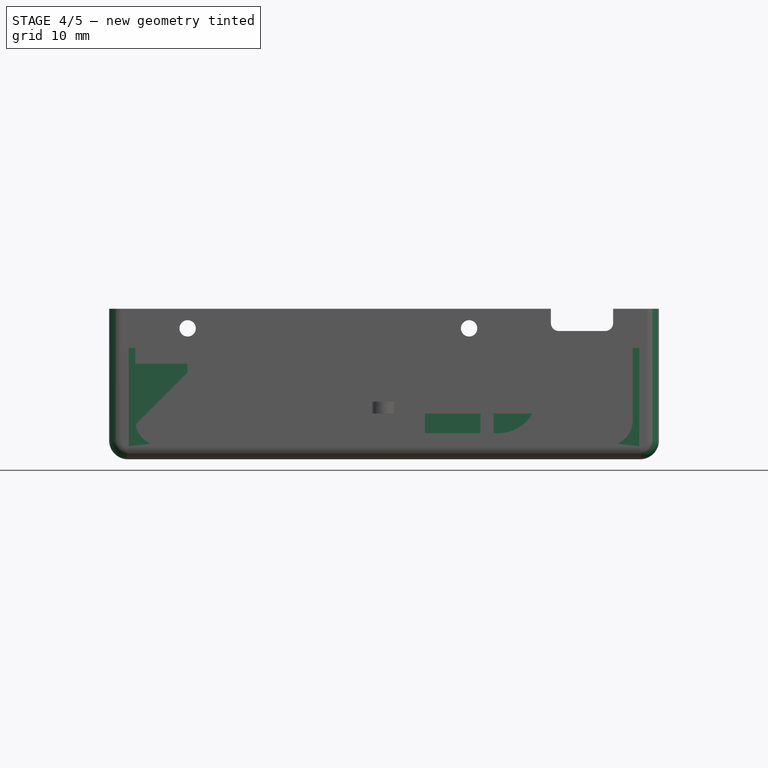
[diagram: stage 4 of 5 — front view after this stage's code; geometry added in this stage tinted green]
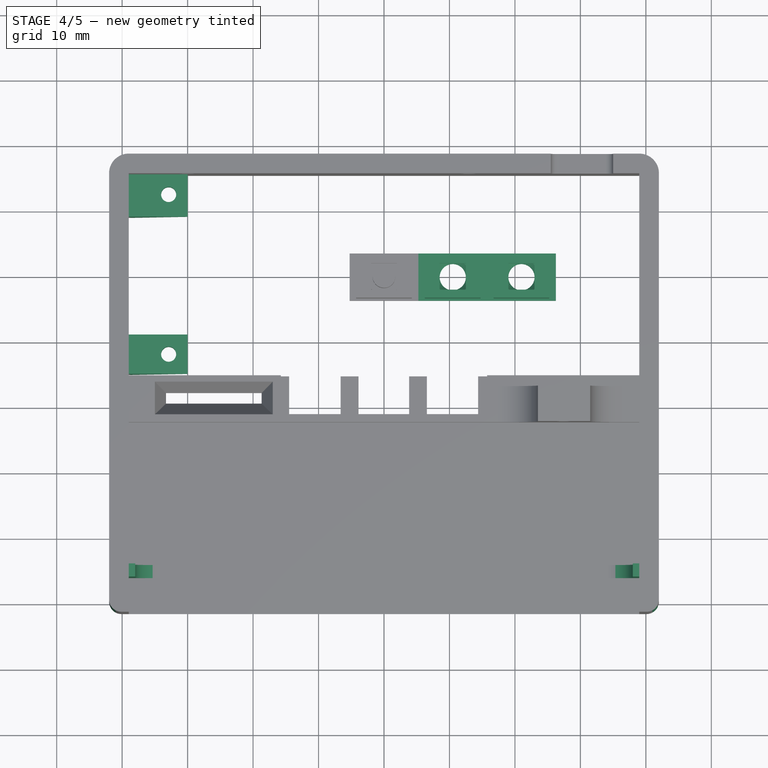
[diagram: stage 4 of 5 — top view after this stage's code; geometry added in this stage tinted green]
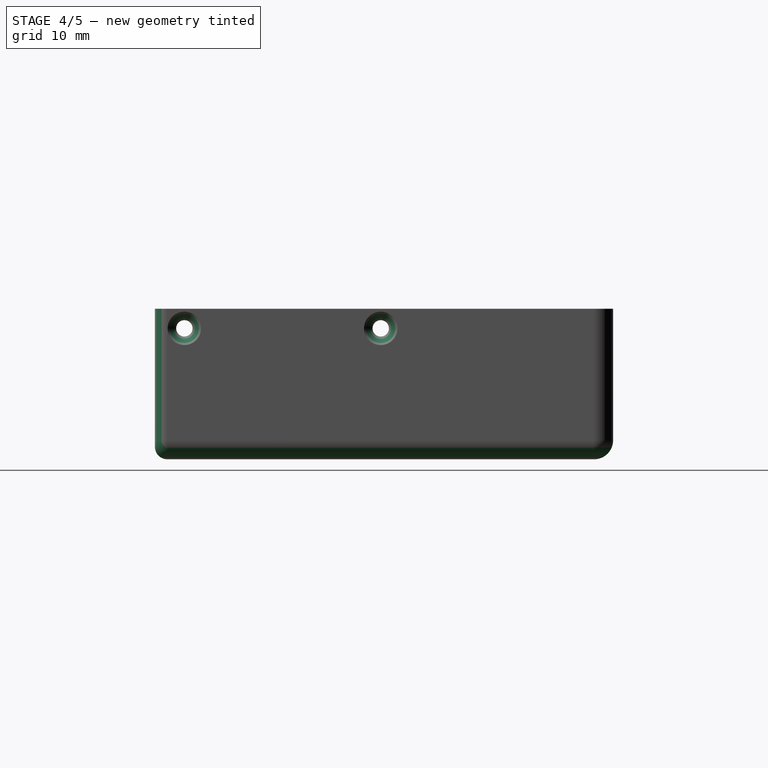
[diagram: stage 4 of 5 — right view after this stage's code; geometry added in this stage tinted green]
FEATURE [PartDesign::Chamfer] Chamfer
  Angle = 45
  Base = -> Pocket006 [Edge15,Edge14,Edge19,Edge64,Edge63,Edge20]
  BaseFeature = -> Pocket006
  ChamferType = 0
  FlipDirection = false
  Size = 1.3
  Size2 = 1
  SupportTransform = false
  UseAllEdges = false
FEATURE [Sketcher::SketchObject] Sketch022
  AttachmentOffset = pos=(0,0,-5.5) rot=(0,0,1;0rad)
  ExternalGeometry = -> [Chamfer]
  FullyConstrained = true
  MapMode = 5
  Placement = pos=(0,-46,-1.2e-15) rot=(1,0,0;1.5708rad)
  Support = -> [Chamfer]
  sketch-geometry (10):
    g0: LineSegment StartX=38 StartY=17 StartZ=0 EndX=39 EndY=17 EndZ=0
    g1: LineSegment StartX=39 StartY=17 StartZ=0 EndX=39 EndY=1.99 EndZ=0
    g2: LineSegment StartX=39 StartY=1.99 StartZ=0 EndX=34 EndY=1.99 EndZ=0
    g3: ArcOfCircle CenterX=34 CenterY=5.99 CenterZ=0 NormalX=0 NormalY=0 NormalZ=1 AngleXU=0 Radius=4 StartAngle=4.71239 EndAngle=6.28319
    g4: LineSegment StartX=38 StartY=17 StartZ=0 EndX=38 EndY=5.99 EndZ=0
    g5: LineSegment StartX=-38 StartY=17 StartZ=0 EndX=-39 EndY=17 EndZ=0
    g6: LineSegment StartX=-39 StartY=17 StartZ=0 EndX=-39 EndY=1.99 EndZ=0
    g7: LineSegment StartX=-39 StartY=1.99 StartZ=0 EndX=-34 EndY=1.99 EndZ=0
    g8: ArcOfCircle CenterX=-34 CenterY=5.99 CenterZ=0 NormalX=0 NormalY=0 NormalZ=1 AngleXU=0 Radius=4 StartAngle=3.14159 EndAngle=4.71239
    g9: LineSegment StartX=-38 StartY=17 StartZ=0 EndX=-38 EndY=5.99 EndZ=0
  constraints (28):
    c: Coincident(g1,g0)
    c: Vertical(g1)
    c: Coincident(g2,g1)
    c: Horizontal(g2)
    c: Coincident(g4,g0)
    c: Vertical(g4)
    c: Tangent(g4,g3) = 1.5708
    c: DistanceY(g-1,g1) = 1.99
    c: DistanceY(g-1,g0) = 17
    c: DistanceX(g0,g0) = 1
    c: Tangent(g3,g2) = 1.5708
    c: Coincident(g6,g5)
    c: Vertical(g6)
    c: Coincident(g7,g6)
    c: Tangent(g8,g7) = -1.5708
    c: Coincident(g9,g5)
    c: Vertical(g9)
    c: Tangent(g9,g8) = -1.5708
    c: Radius(g3) = 4
    c: Equal(g8,g3)
    c: Equal(g6,g1)
    c: Horizontal(g5)
    c: Horizontal(g7)
    c: Horizontal(g0,g5)
    c: Horizontal(g0)
    c: Vertical(g5,g-3)
    c: DistanceX(g5,g5) = 1
    c: DistanceX(g5,g0) = 78
FEATURE [PartDesign::Pad] Pad015
  BaseFeature = -> Chamfer
  Direction = (0,-1,2e-16)
  Length = 2
  Length2 = 10
  Profile = -> Sketch022
  ReferenceAxis = -> Sketch022 [N_Axis]
  Reversed = true
  Type = 0
FEATURE [PartDesign::Fillet] Fillet004
  Base = -> Pad015 [Edge22,Edge23,Edge2,Edge15,Edge16]
  BaseFeature = -> Pad015
  Radius = 2.9
  SupportTransform = false
  UseAllEdges = false
FEATURE [PartDesign::Fillet] Fillet005
  Base = -> Fillet004 [Edge47,Edge73,Edge76,Edge71]
  BaseFeature = -> Fillet004
  Radius = 1.9
  SupportTransform = false
  UseAllEdges = false
FEATURE [Sketcher::SketchObject] Sketch023
  FullyConstrained = true
  MapMode = 5
  Placement = pos=(-39,0,0) rot=(0.57735,0.57735,0.57735;2.0944rad)
  Support = -> [Fillet005]
  sketch-geometry (8):
    g0: LineSegment StartX=-15 StartY=14.6 StartZ=0 EndX=-9 EndY=14.6 EndZ=0
    g1: LineSegment StartX=-9 StartY=14.6 StartZ=0 EndX=-9 EndY=4.6 EndZ=0
    g2: LineSegment StartX=-9 StartY=4.6 StartZ=0 EndX=-15 EndY=4.6 EndZ=0
    g3: LineSegment StartX=-15 StartY=4.6 StartZ=0 EndX=-15 EndY=14.6 EndZ=0
    g4: LineSegment StartX=9 StartY=14.6 StartZ=0 EndX=16 EndY=14.6 EndZ=0
    g5: LineSegment StartX=16 StartY=14.6 StartZ=0 EndX=16 EndY=4.6 EndZ=0
    g6: LineSegment StartX=16 StartY=4.6 StartZ=0 EndX=9 EndY=4.6 EndZ=0
    g7: LineSegment StartX=9 StartY=4.6 StartZ=0 EndX=9 EndY=14.6 EndZ=0
  constraints (24):
    c: Coincident(g0,g1)
    c: Coincident(g1,g2)
    c: Coincident(g2,g3)
    c: Coincident(g3,g0)
    c: Horizontal(g0)
    c: Horizontal(g2)
    c: Vertical(g1)
    c: Vertical(g3)
    c: Coincident(g4,g5)
    c: Coincident(g5,g6)
    c: Coincident(g6,g7)
    c: Coincident(g7,g4)
    c: Horizontal(g4)
    c: Horizontal(g6)
    c: Vertical(g5)
    c: Vertical(g7)
    c: Horizontal(g4,g0)
    c: DistanceX(g4,g4) = 7
    c: DistanceY(g-1,g4) = 14.6
    c: DistanceY(g5,g5) = 10
    c: Equal(g1,g5)
    c: DistanceX(g1,g-1) = 9
    c: DistanceX(g-1,g6) = 9
    c: DistanceX(g0,g0) = 6
FEATURE [PartDesign::Pad] Pad016
  BaseFeature = -> Fillet005
  Direction = (1,0,0)
  Length = 9
  Length2 = 10
  Profile = -> Sketch023
  ReferenceAxis = -> Sketch023 [N_Axis]
  Type = 0
FEATURE [PartDesign::Chamfer] Chamfer001
  Angle = 45
  Base = -> Pad016 [Edge69,Edge85]
  BaseFeature = -> Pad016
  ChamferType = 0
  FlipDirection = false
  Size = 8.7
  Size2 = 1
  SupportTransform = false
  UseAllEdges = false
FEATURE [Sketcher::SketchObject] Sketch024
  FullyConstrained = true
  MapMode = 5
  Placement = pos=(0,0,14.6) rot=(0,0,1;0rad)
  Support = -> [Chamfer001]
  sketch-geometry (2):
    g0: Circle CenterX=-32.9 CenterY=-12 CenterZ=0 NormalX=0 NormalY=0 NormalZ=1 AngleXU=0 Radius=1.15
    g1: Circle CenterX=-32.9 CenterY=12.4 CenterZ=0 NormalX=0 NormalY=0 NormalZ=1 AngleXU=0 Radius=1.15
  constraints (6):
    c: Diameter(g0) = 2.3
    c: DistanceX(g0,g-1) = 32.9
    c: DistanceY(g0,g-1) = 12
    c: Vertical(g0,g1)
    c: DistanceY(g0,g1) = 24.4
    c: Equal(g0,g1)
FEATURE [PartDesign::Pocket] Pocket007
  BaseFeature = -> Chamfer001
  Direction = (0,0,-1)
  Length = 7
  Length2 = 5
  Profile = -> Sketch024
  ReferenceAxis = -> Sketch024 [N_Axis]
  Type = 0
FEATURE [PartDesign::Body] Body001
  Group = -> [Sketch007,Pad005,Sketch008,Pad006,Sketch009,Pocket002,Sketch010,Pad007,Sketch011,Pocket003,Sketch026,Pocket009,Fillet007,Chamfer003]
  Origin = -> Origin001
  Tip = -> Chamfer003
FEATURE [Part::FeaturePython] Populate001  label="Populate LinearArray with Body"  # WARN: FeaturePython — macro-defined, semantics opaque (R4)
  Copying = 0
  ExposePlacement = false
  MarkerShape = 1
  MarkerSize = 0
  NumElements = 0
  Object = -> Body001
  OutputCompounding = 1
  PlacementsTo = -> LinearArray
  Referencing = 0
  Type = lattice2PopulateCopies.LatticePopulateCopies
  isLattice = 0
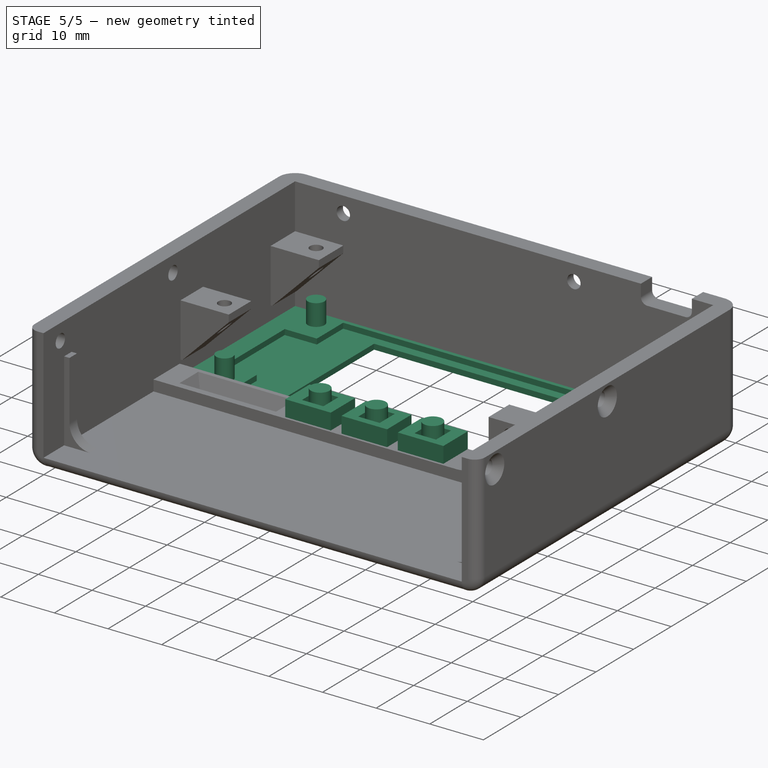
[diagram: stage 5 of 5 — iso view after this stage's code; geometry added in this stage tinted green]
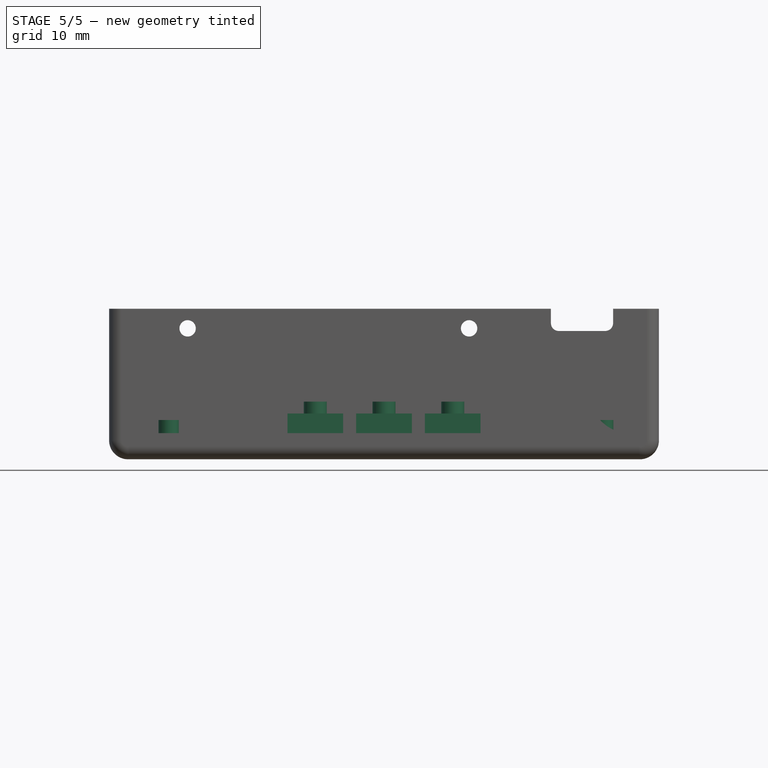
[diagram: stage 5 of 5 — front view after this stage's code; geometry added in this stage tinted green]
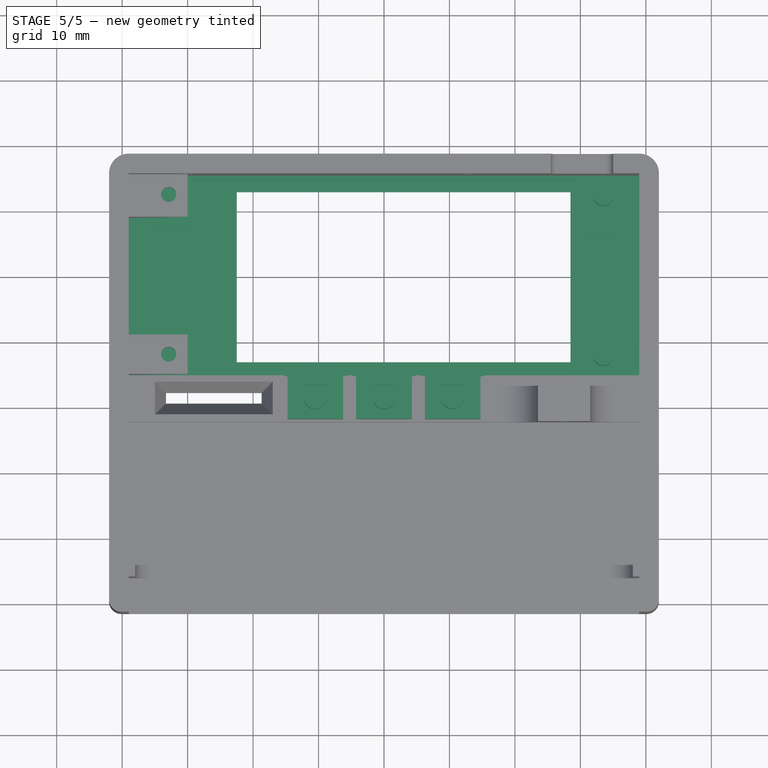
[diagram: stage 5 of 5 — top view after this stage's code; geometry added in this stage tinted green]
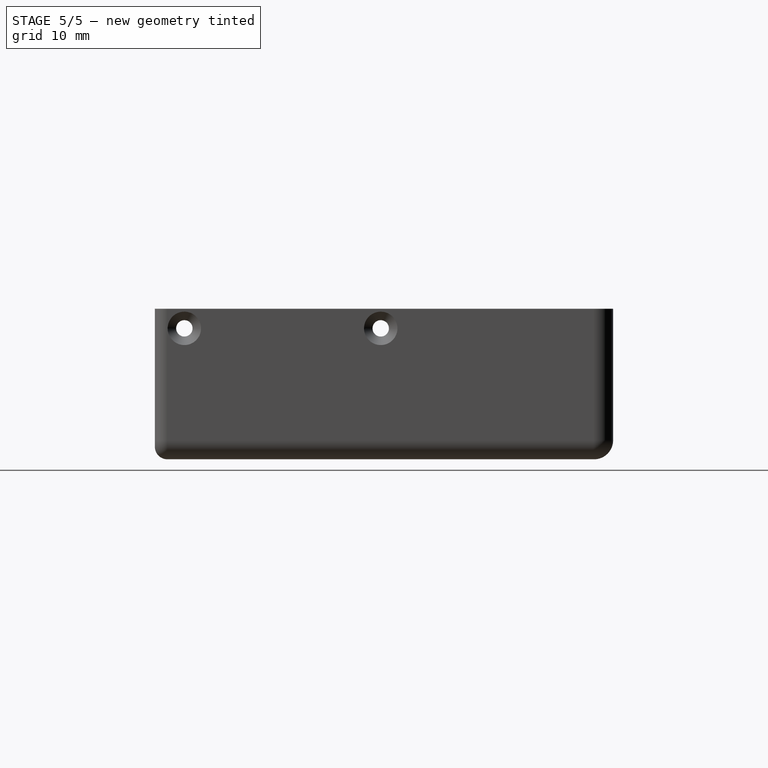
[diagram: stage 5 of 5 — right view after this stage's code; geometry added in this stage tinted green]
FEATURE [Sketcher::SketchObject] Sketch
  FullyConstrained = true
  MapMode = 5
  Support = -> [XY_Plane]
  sketch-geometry (4):
    g0: LineSegment StartX=-39 StartY=15.5 StartZ=0 EndX=39 EndY=15.5 EndZ=0
    g1: LineSegment StartX=39 StartY=15.5 StartZ=0 EndX=39 EndY=-15 EndZ=0
    g2: LineSegment StartX=39 StartY=-15 StartZ=0 EndX=-39 EndY=-15 EndZ=0
    g3: LineSegment StartX=-39 StartY=-15 StartZ=0 EndX=-39 EndY=15.5 EndZ=0
  constraints (11):
    c: Coincident(g0,g1)
    c: Coincident(g1,g2)
    c: Coincident(g2,g3)
    c: Coincident(g3,g0)
    c: Horizontal(g2)
    c: Vertical(g1)
    c: Vertical(g3)
    c: DistanceX(g0,g0) = 78
    c: DistanceY(g1,g1) = 30.5
    c: DistanceY(g-1,g0) = 15.5
    c: Symmetric(g0,g0,g-2)
FEATURE [PartDesign::Pad] Pad
  Direction = (0,0,1)
  Length = 2
  Length2 = 10
  Profile = -> Sketch
  ReferenceAxis = -> Sketch [N_Axis]
  Type = 0
FEATURE [Sketcher::SketchObject] Sketch002
  FullyConstrained = true
  MapMode = 5
  Placement = pos=(0,0,2) rot=(0,0,1;0rad)
  Support = -> [Pad]
  sketch-geometry (5):
    g0: LineSegment StartX=-22.5 StartY=13 StartZ=0 EndX=28.5 EndY=13 EndZ=0
    g1: LineSegment StartX=28.5 StartY=13 StartZ=0 EndX=28.5 EndY=-13 EndZ=0
    g2: LineSegment StartX=28.5 StartY=-13 StartZ=0 EndX=-22.5 EndY=-13 EndZ=0
    g3: LineSegment StartX=-22.5 StartY=-13 StartZ=0 EndX=-22.5 EndY=13 EndZ=0
    g4: GeomPoint X=3 Y=0 Z=0
  constraints (13):
    c: Coincident(g0,g1)
    c: Coincident(g1,g2)
    c: Coincident(g2,g3)
    c: Coincident(g3,g0)
    c: Horizontal(g0)
    c: Horizontal(g2)
    c: Vertical(g1)
    c: Vertical(g3)
    c: PointOnObject(g4,g-1)
    c: Symmetric(g1,g0,g4)
    c: DistanceX(g0,g0) = 51
    c: DistanceY(g1,g1) = 26
    c: DistanceX(g-1,g4) = 3
FEATURE [PartDesign::Pocket] Pocket
  BaseFeature = -> Pad
  Direction = (0,0,-1)
  Length = 5
  Length2 = 5
  Profile = -> Sketch002
  ReferenceAxis = -> Sketch002 [N_Axis]
  Type = 0
FEATURE [Sketcher::SketchObject] Sketch001
  ExternalGeometry = -> [Pocket]
  FullyConstrained = true
  MapMode = 5
  Placement = pos=(0,0,2) rot=(0,0,1;0rad)
  Support = -> [Pocket]
  sketch-geometry (4):
    g0: Circle CenterX=33.5 CenterY=12.4 CenterZ=0 NormalX=0 NormalY=0 NormalZ=1 AngleXU=0 Radius=1.55
    g1: Circle CenterX=33.5 CenterY=-12 CenterZ=0 NormalX=0 NormalY=0 NormalZ=1 AngleXU=0 Radius=1.55
    g2: Circle CenterX=-32.9 CenterY=12.4 CenterZ=0 NormalX=0 NormalY=0 NormalZ=1 AngleXU=0 Radius=1.55
    g3: Circle CenterX=-32.9 CenterY=-12 CenterZ=0 NormalX=0 NormalY=0 NormalZ=1 AngleXU=0 Radius=1.55
  constraints (12):
    c: Equal(g2,g0)
    c: Equal(g0,g1)
    c: Equal(g1,g3)
    c: Diameter(g0) = 3.1
    c: Vertical(g0,g1)
    c: Vertical(g2,g3)
    c: Horizontal(g2,g0)
    c: Horizontal(g1,g3)
    c: DistanceX(g2,g0) = 66.4
    c: DistanceY(g3,g2) = 24.4
    c: DistanceY(g-3,g1) = 1
    c: DistanceX(g-3,g1) = 5
FEATURE [Sketcher::SketchObject] Sketch003
  ExternalGeometry = -> [Pocket]
  FullyConstrained = true
  MapMode = 5
  Placement = pos=(0,0,2) rot=(0,0,1;0rad)
  Support = -> [Pocket]
  sketch-geometry (12):
    g0: LineSegment StartX=-35.5 StartY=7.75 StartZ=0 EndX=-35.5 EndY=-8.25 EndZ=0
    g1: LineSegment StartX=-35.5 StartY=-8.25 StartZ=0 EndX=-29.5 EndY=-8.25 EndZ=0
    g2: LineSegment StartX=-29.5 StartY=-8.25 StartZ=0 EndX=-29.5 EndY=-14.75 EndZ=0
    g3: LineSegment StartX=-29.5 StartY=-14.75 StartZ=0 EndX=30.25 EndY=-14.75 EndZ=0
    g4: LineSegment StartX=30.25 StartY=-14.75 StartZ=0 EndX=30.25 EndY=-5.75 EndZ=0
    g5: LineSegment StartX=30.25 StartY=-5.75 StartZ=0 EndX=36.25 EndY=-5.75 EndZ=0
    g6: LineSegment StartX=36.25 StartY=-5.75 StartZ=0 EndX=36.25 EndY=5.75 EndZ=0
    g7: LineSegment StartX=36.25 StartY=5.75 StartZ=0 EndX=30.25 EndY=5.75 EndZ=0
    g8: LineSegment StartX=30.25 StartY=5.75 StartZ=0 EndX=30.25 EndY=14.75 EndZ=0
    g9: LineSegment StartX=30.25 StartY=14.75 StartZ=0 EndX=-29.5 EndY=14.75 EndZ=0
    g10: LineSegment StartX=-29.5 StartY=14.75 StartZ=0 EndX=-29.5 EndY=7.75 EndZ=0
    g11: LineSegment StartX=-29.5 StartY=7.75 StartZ=0 EndX=-35.5 EndY=7.75 EndZ=0
  constraints (36):
    c: Vertical(g0)
    c: Coincident(g1,g0)
    c: Horizontal(g1)
    c: Coincident(g2,g1)
    c: Vertical(g2)
    c: Coincident(g3,g2)
    c: Horizontal(g3)
    c: Coincident(g4,g3)
    c: Vertical(g4)
    c: Coincident(g5,g4)
    c: Horizontal(g5)
    c: Coincident(g6,g5)
    c: Vertical(g6)
    c: Coincident(g7,g6)
    c: Horizontal(g7)
    c: Coincident(g8,g7)
    c: Vertical(g8)
    c: Coincident(g9,g8)
    c: Horizontal(g9)
    c: Coincident(g10,g9)
    c: Vertical(g10)
    c: Coincident(g11,g10)
    c: Horizontal(g11)
    c: Coincident(g0,g11)
    c: DistanceY(g0,g0) = 16
    c: DistanceX(g1,g1) = 6
    c: DistanceY(g10,g10) = 7
    c: DistanceY(g2,g9) = 29.5
    c: DistanceY(g8,g8) = 9
    c: DistanceX(g5,g5) = 6
    c: Vertical(g10,g1)
    c: Equal(g4,g8)
    c: Vertical(g7,g4)
    c: DistanceX(g9,g9) = 59.75
    c: DistanceX(g9,g-3) = 7
    c: DistanceY(g-3,g9) = 1.75
FEATURE [PartDesign::Pocket] Pocket001
  BaseFeature = -> Pocket
  Direction = (0,0,-1)
  Length = 1
  Length2 = 5
  Profile = -> Sketch003
  ReferenceAxis = -> Sketch003 [N_Axis]
  Type = 0
FEATURE [PartDesign::Pad] Pad001
  BaseFeature = -> Pocket001
  Direction = (0,0,1)
  Length = 4
  Length2 = 10
  Profile = -> Sketch001
  ReferenceAxis = -> Sketch001 [N_Axis]
  Type = 0
FEATURE [PartDesign::Body] Body002
  Group = -> [Sketch012,Pad008,Sketch013,Pad009,Fillet,Chamfer002]
  Origin = -> Origin002
  Tip = -> Chamfer002
FEATURE [Part::FeaturePython] Populate  label="Populate LinearArray with Body001"  # WARN: FeaturePython — macro-defined, semantics opaque (R4)
  Copying = 0
  ExposePlacement = false
  MarkerShape = 1
  MarkerSize = 0
  NumElements = 0
  Object = -> Body002
  OutputCompounding = 1
  PlacementsTo = -> LinearArray
  Referencing = 0
  Type = lattice2PopulateCopies.LatticePopulateCopies
  isLattice = 0
FEATURE [Part::Compound] Compound
  Links = -> [Populate,Populate001]
FEATURE [Part::Compound] Compound001  label="Buttons"
  Links = -> [Compound]
  Placement = pos=(-10.5,-18.5,0) rot=(0,0,1;0rad)
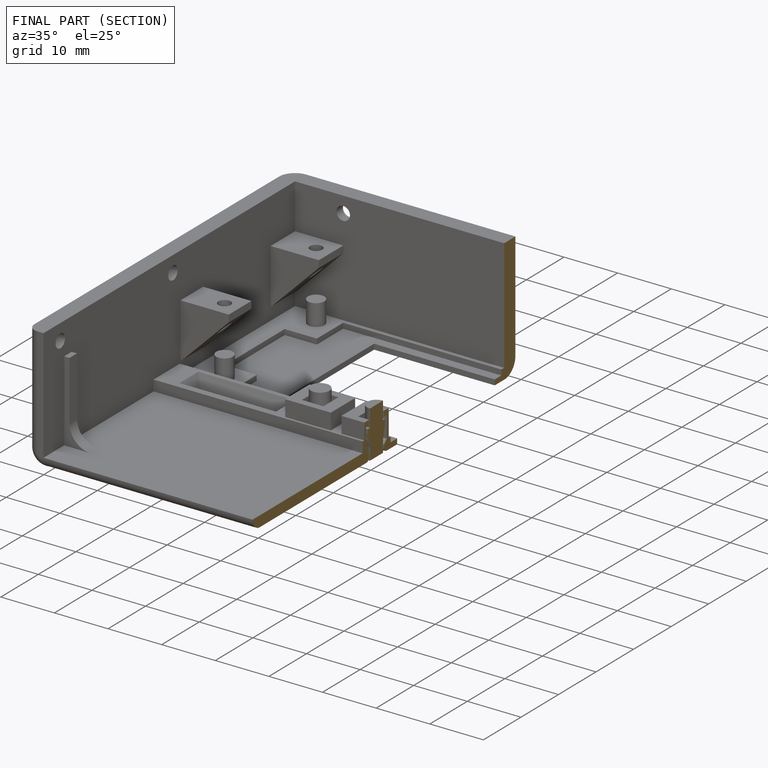
[diagram: finished part — half-section view (interior)]
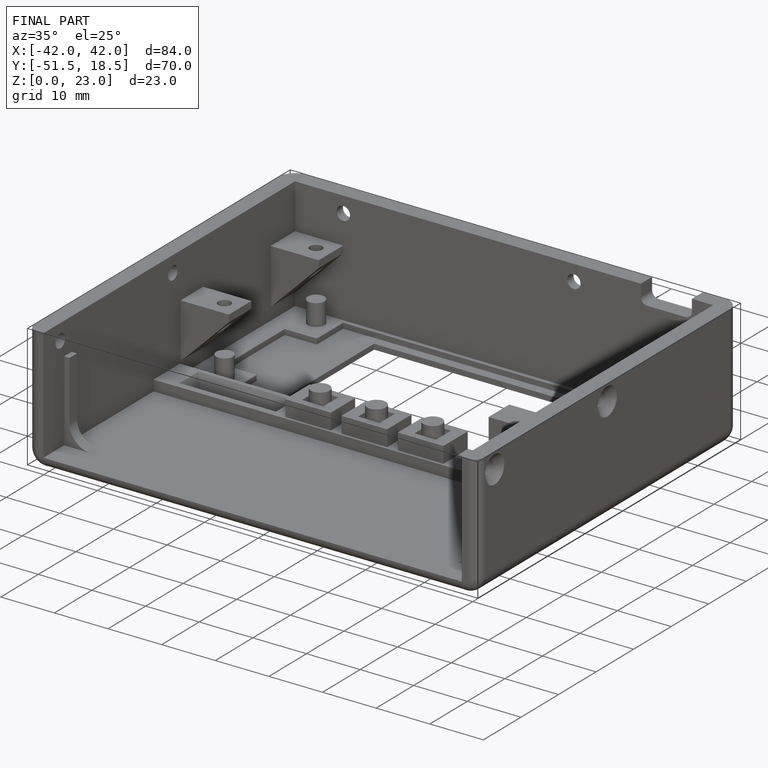
[diagram: finished part — iso view with bounding-box wireframe]
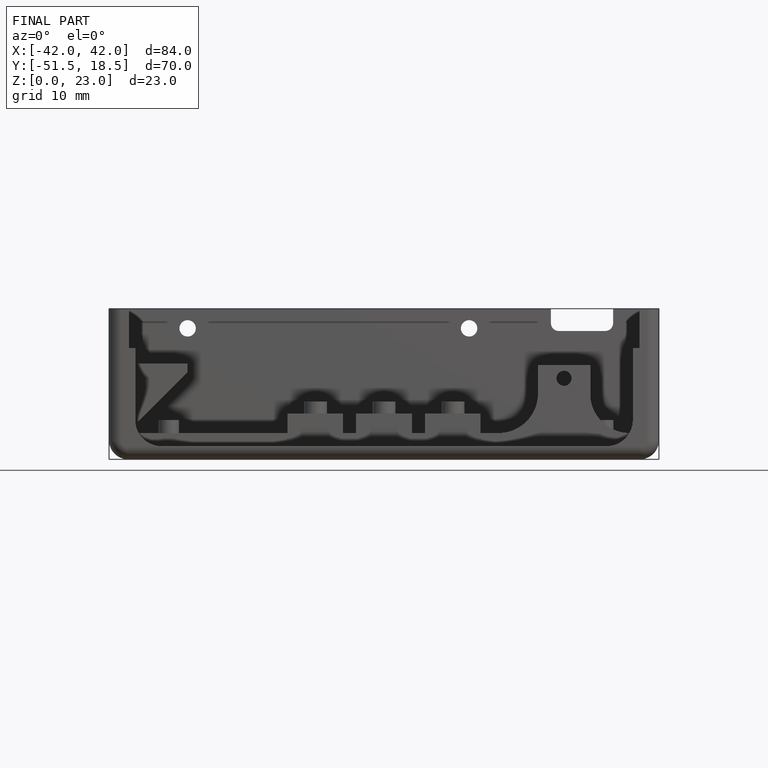
[diagram: finished part — front view with bounding-box wireframe]
